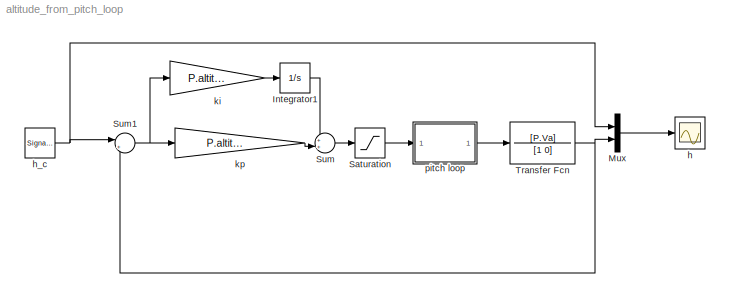
MODEL altitude_from_pitch_loop
KIND model
BLOCK [Integrator] Integrator1
  Ports = [1, 1]
  SID = 10
BLOCK [Mux] Mux
  DisplayOption = bar
  Inputs = 2
  Ports = [2, 1]
  SID = 12
BLOCK [Saturate] Saturation
  LowerLimit = -30*pi/180/P.K_theta_DC
  OutDataType = fixdt(1, 16)
  OutScaling = 2^0
  SID = 4
  UpperLimit = 30*pi/180/P.K_theta_DC
BLOCK [Sum] Sum
  IconShape = round
  InputSameDT = off
  Inputs = ++|
  OutDataType = fixdt(1, 16)
  OutDataTypeMode = Inherit via internal rule
  OutDataTypeStr = Inherit: Inherit via internal rule
  OutScaling = 2^0
  Ports = [2, 1]
  SID = 5
  SaturateOnIntegerOverflow = off
BLOCK [Sum] Sum1
  IconShape = round
  InputSameDT = off
  Inputs = |+-
  OutDataType = fixdt(1, 16)
  OutDataTypeMode = Inherit via internal rule
  OutDataTypeStr = Inherit: Inherit via internal rule
  OutScaling = 2^0
  Ports = [2, 1]
  SID = 9
  SaturateOnIntegerOverflow = off
BLOCK [TransferFcn] Transfer Fcn
  Denominator = [1 0]
  Numerator = [P.Va]
  SID = 34
BLOCK [Scope] h
  DataFormat = StructureWithTime
  Floating = off
  NumInputPorts = 1
  Ports = [1]
  SID = 13
  SampleTime = 0
  TimeRange = 100
  YMax = 15
  YMin = -10
BLOCK [SignalGenerator] h_c
  Amplitude = 5
  Frequency = .02
  Ports = [0, 1]
  SID = 11
  WaveForm = square
BLOCK [Gain] ki
  Gain = P.altitude_ki
  OutDataType = fixdt(1, 16)
  OutDataTypeMode = Inherit via internal rule
  OutDataTypeStr = Inherit: Inherit via internal rule
  OutScaling = 2^0
  ParamDataTypeStr = Inherit: Inherit via internal rule
  ParameterDataType = fixdt(1, 16)
  ParameterDataTypeMode = Inherit via internal rule
  ParameterScaling = 2^0
  SID = 7
  SaturateOnIntegerOverflow = off
BLOCK [Gain] kp
  Gain = P.altitude_kp
  OutDataType = fixdt(1, 16)
  OutDataTypeMode = Inherit via internal rule
  OutDataTypeStr = Inherit: Inherit via internal rule
  OutScaling = 2^0
  ParamDataTypeStr = Inherit: Inherit via internal rule
  ParameterDataType = fixdt(1, 16)
  ParameterDataTypeMode = Inherit via internal rule
  ParameterScaling = 2^0
  SID = 8
  SaturateOnIntegerOverflow = off
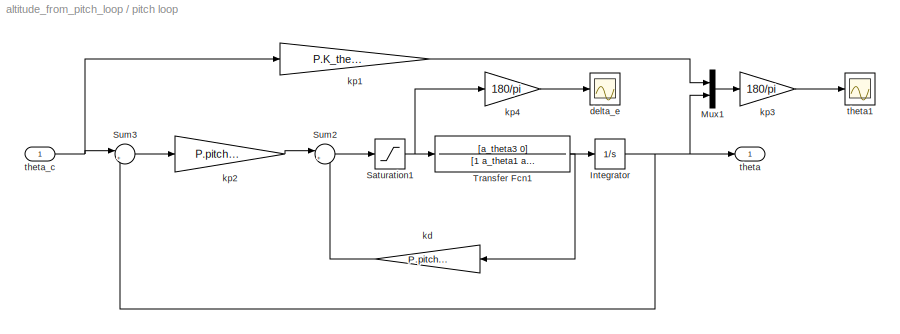
BLOCK [SubSystem] pitch loop
  FunctionWithSeparateData = off
  MaskHideContents = off
  MinAlgLoopOccurrences = off
  Opaque = off
  Ports = [1, 1]
  PropExecContextOutsideSubsystem = off
  RTWSystemCode = Auto
  RequestExecContextInheritance = off
  SID = 47
BLOCK [Integrator] pitch loop/Integrator
  Ports = [1, 1]
  SID = 35
BLOCK [Mux] pitch loop/Mux1
  DisplayOption = bar
  Inputs = 2
  Ports = [2, 1]
  SID = 36
BLOCK [Saturate] pitch loop/Saturation1
  LowerLimit = -delta_e_max
  OutDataType = fixdt(1, 16)
  OutScaling = 2^0
  SID = 37
  UpperLimit = delta_e_max
BLOCK [Sum] pitch loop/Sum2
  IconShape = round
  InputSameDT = off
  Inputs = |+-
  OutDataType = fixdt(1, 16)
  OutDataTypeMode = Inherit via internal rule
  OutDataTypeStr = Inherit: Inherit via internal rule
  OutScaling = 2^0
  Ports = [2, 1]
  SID = 38
  SaturateOnIntegerOverflow = off
BLOCK [Sum] pitch loop/Sum3
  IconShape = round
  InputSameDT = off
  Inputs = |+-
  OutDataType = fixdt(1, 16)
  OutDataTypeMode = Inherit via internal rule
  OutDataTypeStr = Inherit: Inherit via internal rule
  OutScaling = 2^0
  Ports = [2, 1]
  SID = 39
  SaturateOnIntegerOverflow = off
BLOCK [TransferFcn] pitch loop/Transfer Fcn1
  Denominator = [1 a_theta1 a_theta2]
  Numerator = [a_theta3 0]
  SID = 40
BLOCK [Scope] pitch loop/delta_e
  DataFormat = StructureWithTime
  Floating = off
  NumInputPorts = 1
  Ports = [1]
  SID = 41
  SampleTime = 0
  SaveName = ScopeData1
  TimeRange = 100
  YMax = 15
  YMin = -10
BLOCK [Gain] pitch loop/kd
  Gain = P.pitch_kd
  OutDataType = fixdt(1, 16)
  OutDataTypeMode = Inherit via internal rule
  OutDataTypeStr = Inherit: Inherit via internal rule
  OutScaling = 2^0
  ParamDataTypeStr = Inherit: Inherit via internal rule
  ParameterDataType = fixdt(1, 16)
  ParameterDataTypeMode = Inherit via internal rule
  ParameterScaling = 2^0
  SID = 42
  SaturateOnIntegerOverflow = off
BLOCK [Gain] pitch loop/kp1
  Gain = P.K_theta_DC
  OutDataType = fixdt(1, 16)
  OutDataTypeMode = Inherit via internal rule
  OutDataTypeStr = Inherit: Inherit via internal rule
  OutScaling = 2^0
  ParamDataTypeStr = Inherit: Inherit via internal rule
  ParameterDataType = fixdt(1, 16)
  ParameterDataTypeMode = Inherit via internal rule
  ParameterScaling = 2^0
  SID = 51
  SaturateOnIntegerOverflow = off
BLOCK [Gain] pitch loop/kp2
  Gain = P.pitch_kp
  OutDataType = fixdt(1, 16)
  OutDataTypeMode = Inherit via internal rule
  OutDataTypeStr = Inherit: Inherit via internal rule
  OutScaling = 2^0
  ParamDataTypeStr = Inherit: Inherit via internal rule
  ParameterDataType = fixdt(1, 16)
  ParameterDataTypeMode = Inherit via internal rule
  ParameterScaling = 2^0
  SID = 43
  SaturateOnIntegerOverflow = off
BLOCK [Gain] pitch loop/kp3
  Gain = 180/pi
  OutDataType = fixdt(1, 16)
  OutDataTypeMode = Inherit via internal rule
  OutDataTypeStr = Inherit: Inherit via internal rule
  OutScaling = 2^0
  ParamDataTypeStr = Inherit: Inherit via internal rule
  ParameterDataType = fixdt(1, 16)
  ParameterDataTypeMode = Inherit via internal rule
  ParameterScaling = 2^0
  SID = 44
  SaturateOnIntegerOverflow = off
BLOCK [Gain] pitch loop/kp4
  Gain = 180/pi
  OutDataType = fixdt(1, 16)
  OutDataTypeMode = Inherit via internal rule
  OutDataTypeStr = Inherit: Inherit via internal rule
  OutScaling = 2^0
  ParamDataTypeStr = Inherit: Inherit via internal rule
  ParameterDataType = fixdt(1, 16)
  ParameterDataTypeMode = Inherit via internal rule
  ParameterScaling = 2^0
  SID = 45
  SaturateOnIntegerOverflow = off
BLOCK [Outport] pitch loop/theta
  IconDisplay = Port number
  SID = 48
BLOCK [Scope] pitch loop/theta1
  DataFormat = StructureWithTime
  Floating = off
  NumInputPorts = 1
  Ports = [1]
  SID = 50
  SampleTime = 0
  SaveName = ScopeData2
  TimeRange = 100
  YMax = 40
  YMin = -40
BLOCK [Inport] pitch loop/theta_c
  IconDisplay = Port number
  SID = 49
LINE Integrator1:1 -> Sum:1
LINE Mux:1 -> h:1
LINE Saturation:1 -> pitch loop:1
NET Sum1:1 -> ki:1, kp:1
LINE Sum:1 -> Saturation:1
NET Transfer Fcn:1 -> Mux:2, Sum1:2
NET h_c:1 -> Mux:1, Sum1:1
LINE ki:1 -> Integrator1:1
LINE kp:1 -> Sum:2
NET pitch loop/Integrator:1 -> pitch loop/Mux1:2, pitch loop/Sum3:2, pitch loop/theta:1
LINE pitch loop/Mux1:1 -> pitch loop/kp3:1
NET pitch loop/Saturation1:1 -> pitch loop/Transfer Fcn1:1, pitch loop/kp4:1
LINE pitch loop/Sum2:1 -> pitch loop/Saturation1:1
LINE pitch loop/Sum3:1 -> pitch loop/kp2:1
NET pitch loop/Transfer Fcn1:1 -> pitch loop/Integrator:1, pitch loop/kd:1
LINE pitch loop/kd:1 -> pitch loop/Sum2:2
LINE pitch loop/kp1:1 -> pitch loop/Mux1:1
LINE pitch loop/kp2:1 -> pitch loop/Sum2:1
LINE pitch loop/kp3:1 -> pitch loop/theta1:1
LINE pitch loop/kp4:1 -> pitch loop/delta_e:1
NET pitch loop/theta_c:1 -> pitch loop/Sum3:1, pitch loop/kp1:1
LINE pitch loop:1 -> Transfer Fcn:1
note: NET lines group one-source signal fan-out (src -> all destinations, sorted); 1:1 wires keep LINE
